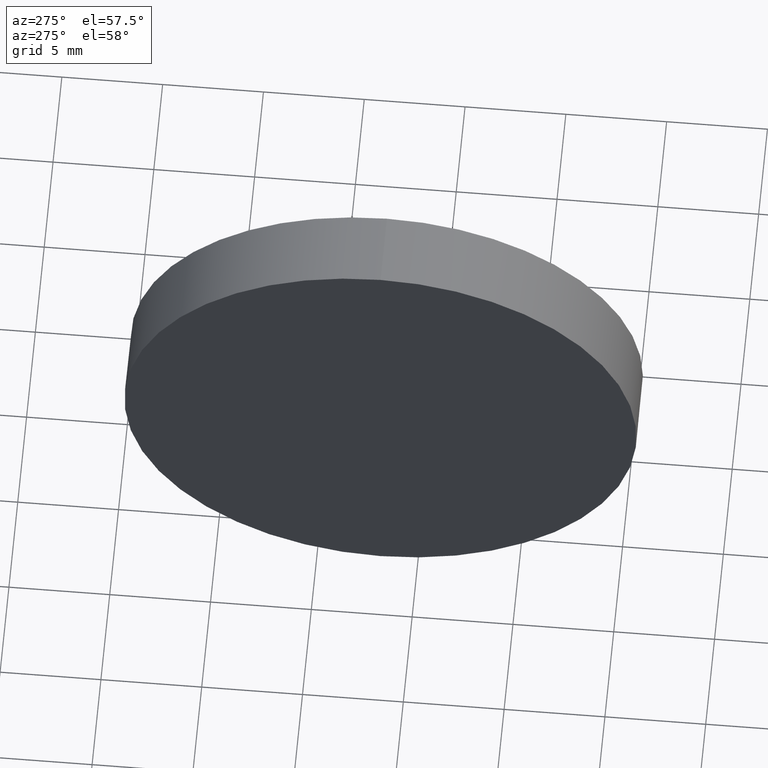
[diagram: clean part render]
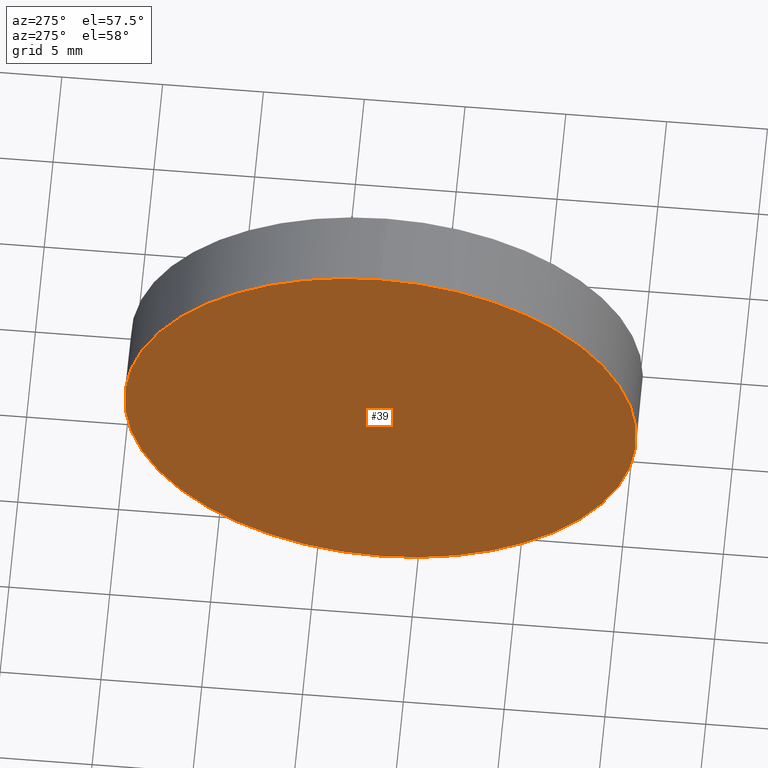
[diagram: same view with one face highlighted and labeled with its STEP entity id]
A machine part, auxiliary view. The second image highlights one B-rep face of the part: STEP entity #39.
In plain terms, the highlighted planar face has unit normal (1, 0, 0).
Its self-contained STEP definition (entity closure, byte-faithful):
#6 = PLANE ( 'NONE',  #21 ) ;
#14 = VERTEX_POINT ( 'NONE', #143 ) ;
#21 = AXIS2_PLACEMENT_3D ( 'NONE', #75, #80, #167 ) ;
#22 = ORIENTED_EDGE ( 'NONE', *, *, #99, .T. ) ;
#29 = EDGE_CURVE ( 'NONE', #14, #49, #114, .T. ) ;
#33 = AXIS2_PLACEMENT_3D ( 'NONE', #55, #169, #132 ) ;
#37 = ORIENTED_EDGE ( 'NONE', *, *, #29, .T. ) ;
#39 = ADVANCED_FACE ( 'NONE', ( #141 ), #6, .F. ) ;
#40 = EDGE_LOOP ( 'NONE', ( #37, #22 ) ) ;
#49 = VERTEX_POINT ( 'NONE', #146 ) ;
#55 = CARTESIAN_POINT ( 'NONE',  ( 348.0685238677178300, 151.8395787280306900, 0.0000000000000000000 ) ) ;
#75 = CARTESIAN_POINT ( 'NONE',  ( 348.0685238677178300, 151.8395787280306900, 0.0000000000000000000 ) ) ;
#80 = DIRECTION ( 'NONE',  ( 1.000000000000000000, 0.0000000000000000000, 0.0000000000000000000 ) ) ;
#99 = EDGE_CURVE ( 'NONE', #49, #14, #157, .T. ) ;
#114 = CIRCLE ( 'NONE', #181, 12.69999999999998900 ) ;
#131 = CARTESIAN_POINT ( 'NONE',  ( 348.0685238677178300, 151.8395787280306900, 0.0000000000000000000 ) ) ;
#132 = DIRECTION ( 'NONE',  ( 0.0000000000000000000, 0.0000000000000000000, 1.000000000000000000 ) ) ;
#141 = FACE_OUTER_BOUND ( 'NONE', #40, .T. ) ;
#143 = CARTESIAN_POINT ( 'NONE',  ( 348.0685238677178300, 151.8395787280306900, 12.69999999999998900 ) ) ;
#144 = DIRECTION ( 'NONE',  ( 0.0000000000000000000, 0.0000000000000000000, 1.000000000000000000 ) ) ;
#146 = CARTESIAN_POINT ( 'NONE',  ( 348.0685238677178300, 151.8395787280306900, -12.69999999999998900 ) ) ;
#147 = DIRECTION ( 'NONE',  ( -1.000000000000000000, -0.0000000000000000000, -0.0000000000000000000 ) ) ;
#157 = CIRCLE ( 'NONE', #33, 12.69999999999998900 ) ;
#167 = DIRECTION ( 'NONE',  ( 0.0000000000000000000, 0.0000000000000000000, -1.000000000000000000 ) ) ;
#169 = DIRECTION ( 'NONE',  ( -1.000000000000000000, -0.0000000000000000000, -0.0000000000000000000 ) ) ;
#181 = AXIS2_PLACEMENT_3D ( 'NONE', #131, #147, #144 ) ;